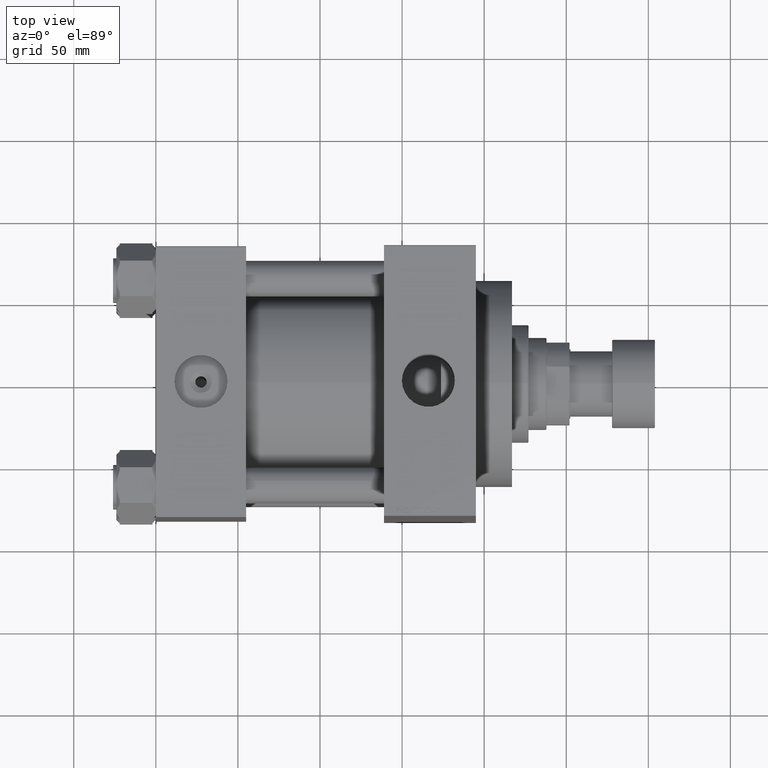
[diagram: clean part render]
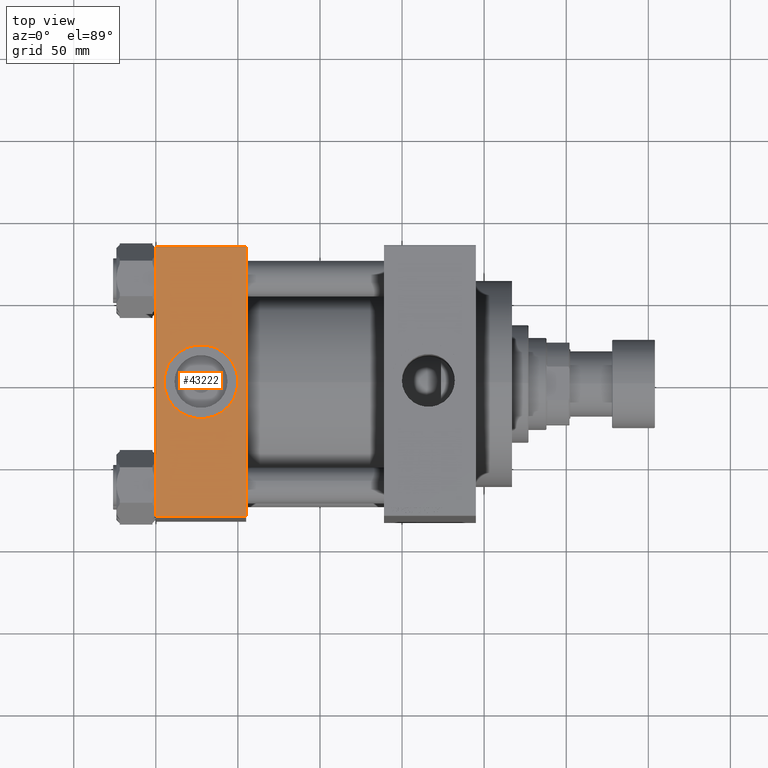
[diagram: same view with one face highlighted and labeled with its STEP entity id]
A machine part, top view. The second image highlights one B-rep face of the part: STEP entity #43222.
In plain terms, the highlighted planar face has unit normal (0, 0, -1).
Its self-contained STEP definition (entity closure, byte-faithful):
#63 = LINE ( 'NONE', #40732, #15534 ) ;
#405 = LINE ( 'NONE', #14798, #9769 ) ;
#3576 = DIRECTION ( 'NONE',  ( -1.000000000000000000, 0.000000000000000000, 0.000000000000000000 ) ) ;
#3824 = LINE ( 'NONE', #47652, #6575 ) ;
#5046 = CARTESIAN_POINT ( 'NONE',  ( 4.999999999999993783, -5.918162081802491483E-15, 82.50000000000001421 ) ) ;
#5434 = ORIENTED_EDGE ( 'NONE', *, *, #13069, .T. ) ;
#6024 = VERTEX_POINT ( 'NONE', #28320 ) ;
#6340 = EDGE_CURVE ( 'NONE', #24701, #20893, #10476, .T. ) ;
#6438 = EDGE_CURVE ( 'NONE', #6024, #27118, #3824, .T. ) ;
#6575 = VECTOR ( 'NONE', #3576, 1000.000000000000000 ) ;
#8136 = EDGE_LOOP ( 'NONE', ( #24420, #5434, #45134, #29540 ) ) ;
#8947 = CARTESIAN_POINT ( 'NONE',  ( 50.00000000000000000, -8.673617379884037050E-15, 82.50000000000001421 ) ) ;
#9737 = EDGE_CURVE ( 'NONE', #6024, #47805, #405, .T. ) ;
#9769 = VECTOR ( 'NONE', #33768, 1000.000000000000000 ) ;
#9933 = AXIS2_PLACEMENT_3D ( 'NONE', #29163, #39656, #21872 ) ;
#10476 = CIRCLE ( 'NONE', #43896, 22.50000000000000355 ) ;
#10627 = DIRECTION ( 'NONE',  ( 0.000000000000000000, 0.000000000000000000, 1.000000000000000000 ) ) ;
#12890 = CIRCLE ( 'NONE', #37002, 22.50000000000000355 ) ;
#13069 = EDGE_CURVE ( 'NONE', #41702, #47805, #31223, .T. ) ;
#13958 = EDGE_CURVE ( 'NONE', #20893, #24701, #12890, .T. ) ;
#14798 = CARTESIAN_POINT ( 'NONE',  ( 55.00000000000000000, 82.50000000000002842, 82.50000000000002842 ) ) ;
#15534 = VECTOR ( 'NONE', #28807, 1000.000000000000000 ) ;
#16155 = DIRECTION ( 'NONE',  ( 1.000000000000000000, 0.000000000000000000, 0.000000000000000000 ) ) ;
#20893 = VERTEX_POINT ( 'NONE', #5046 ) ;
#21831 = CARTESIAN_POINT ( 'NONE',  ( 27.50000000000000000, -8.673617379884037050E-15, 82.50000000000001421 ) ) ;
#21872 = DIRECTION ( 'NONE',  ( 0.000000000000000000, 1.000000000000000000, 8.410780489584519171E-17 ) ) ;
#24420 = ORIENTED_EDGE ( 'NONE', *, *, #26586, .T. ) ;
#24701 = VERTEX_POINT ( 'NONE', #8947 ) ;
#25461 = DIRECTION ( 'NONE',  ( 1.000000000000000000, 0.000000000000000000, 0.000000000000000000 ) ) ;
#26249 = ORIENTED_EDGE ( 'NONE', *, *, #6340, .F. ) ;
#26586 = EDGE_CURVE ( 'NONE', #27118, #41702, #63, .T. ) ;
#26724 = EDGE_LOOP ( 'NONE', ( #26249, #34113 ) ) ;
#27118 = VERTEX_POINT ( 'NONE', #28934 ) ;
#28320 = CARTESIAN_POINT ( 'NONE',  ( 55.00000000000000000, 82.00000000000005684, 82.50000000000002842 ) ) ;
#28323 = CARTESIAN_POINT ( 'NONE',  ( 0.000000000000000000, -81.99999999999997158, 82.50000000000001421 ) ) ;
#28807 = DIRECTION ( 'NONE',  ( 0.000000000000000000, -1.000000000000000000, -8.410780489584519171E-17 ) ) ;
#28934 = CARTESIAN_POINT ( 'NONE',  ( 0.000000000000000000, 82.00000000000005684, 82.50000000000002842 ) ) ;
#29163 = CARTESIAN_POINT ( 'NONE',  ( 55.00000000000000000, 82.50000000000002842, 82.50000000000002842 ) ) ;
#29540 = ORIENTED_EDGE ( 'NONE', *, *, #6438, .T. ) ;
#31223 = LINE ( 'NONE', #42908, #44955 ) ;
#32813 = FACE_BOUND ( 'NONE', #26724, .T. ) ;
#33768 = DIRECTION ( 'NONE',  ( 0.000000000000000000, -1.000000000000000000, -8.410780489584519171E-17 ) ) ;
#34113 = ORIENTED_EDGE ( 'NONE', *, *, #13958, .F. ) ;
#37002 = AXIS2_PLACEMENT_3D ( 'NONE', #21831, #10627, #25461 ) ;
#38268 = DIRECTION ( 'NONE',  ( 0.000000000000000000, 0.000000000000000000, 1.000000000000000000 ) ) ;
#39642 = CARTESIAN_POINT ( 'NONE',  ( 27.50000000000000000, -8.673617379884037050E-15, 82.50000000000001421 ) ) ;
#39656 = DIRECTION ( 'NONE',  ( 0.000000000000000000, 8.410780489584519171E-17, -1.000000000000000000 ) ) ;
#40732 = CARTESIAN_POINT ( 'NONE',  ( 0.000000000000000000, 82.50000000000002842, 82.50000000000002842 ) ) ;
#41208 = CARTESIAN_POINT ( 'NONE',  ( 55.00000000000000000, -81.99999999999997158, 82.50000000000001421 ) ) ;
#41702 = VERTEX_POINT ( 'NONE', #28323 ) ;
#41919 = DIRECTION ( 'NONE',  ( 1.000000000000000000, 0.000000000000000000, 0.000000000000000000 ) ) ;
#42908 = CARTESIAN_POINT ( 'NONE',  ( 55.00000000000000000, -81.99999999999997158, 82.50000000000001421 ) ) ;
#43222 = ADVANCED_FACE ( 'NONE', ( #32813, #47670 ), #44023, .F. ) ;
#43896 = AXIS2_PLACEMENT_3D ( 'NONE', #39642, #38268, #41919 ) ;
#44023 = PLANE ( 'NONE',  #9933 ) ;
#44955 = VECTOR ( 'NONE', #16155, 1000.000000000000000 ) ;
#45134 = ORIENTED_EDGE ( 'NONE', *, *, #9737, .F. ) ;
#47652 = CARTESIAN_POINT ( 'NONE',  ( 0.000000000000000000, 82.00000000000005684, 82.50000000000002842 ) ) ;
#47670 = FACE_OUTER_BOUND ( 'NONE', #8136, .T. ) ;
#47805 = VERTEX_POINT ( 'NONE', #41208 ) ;